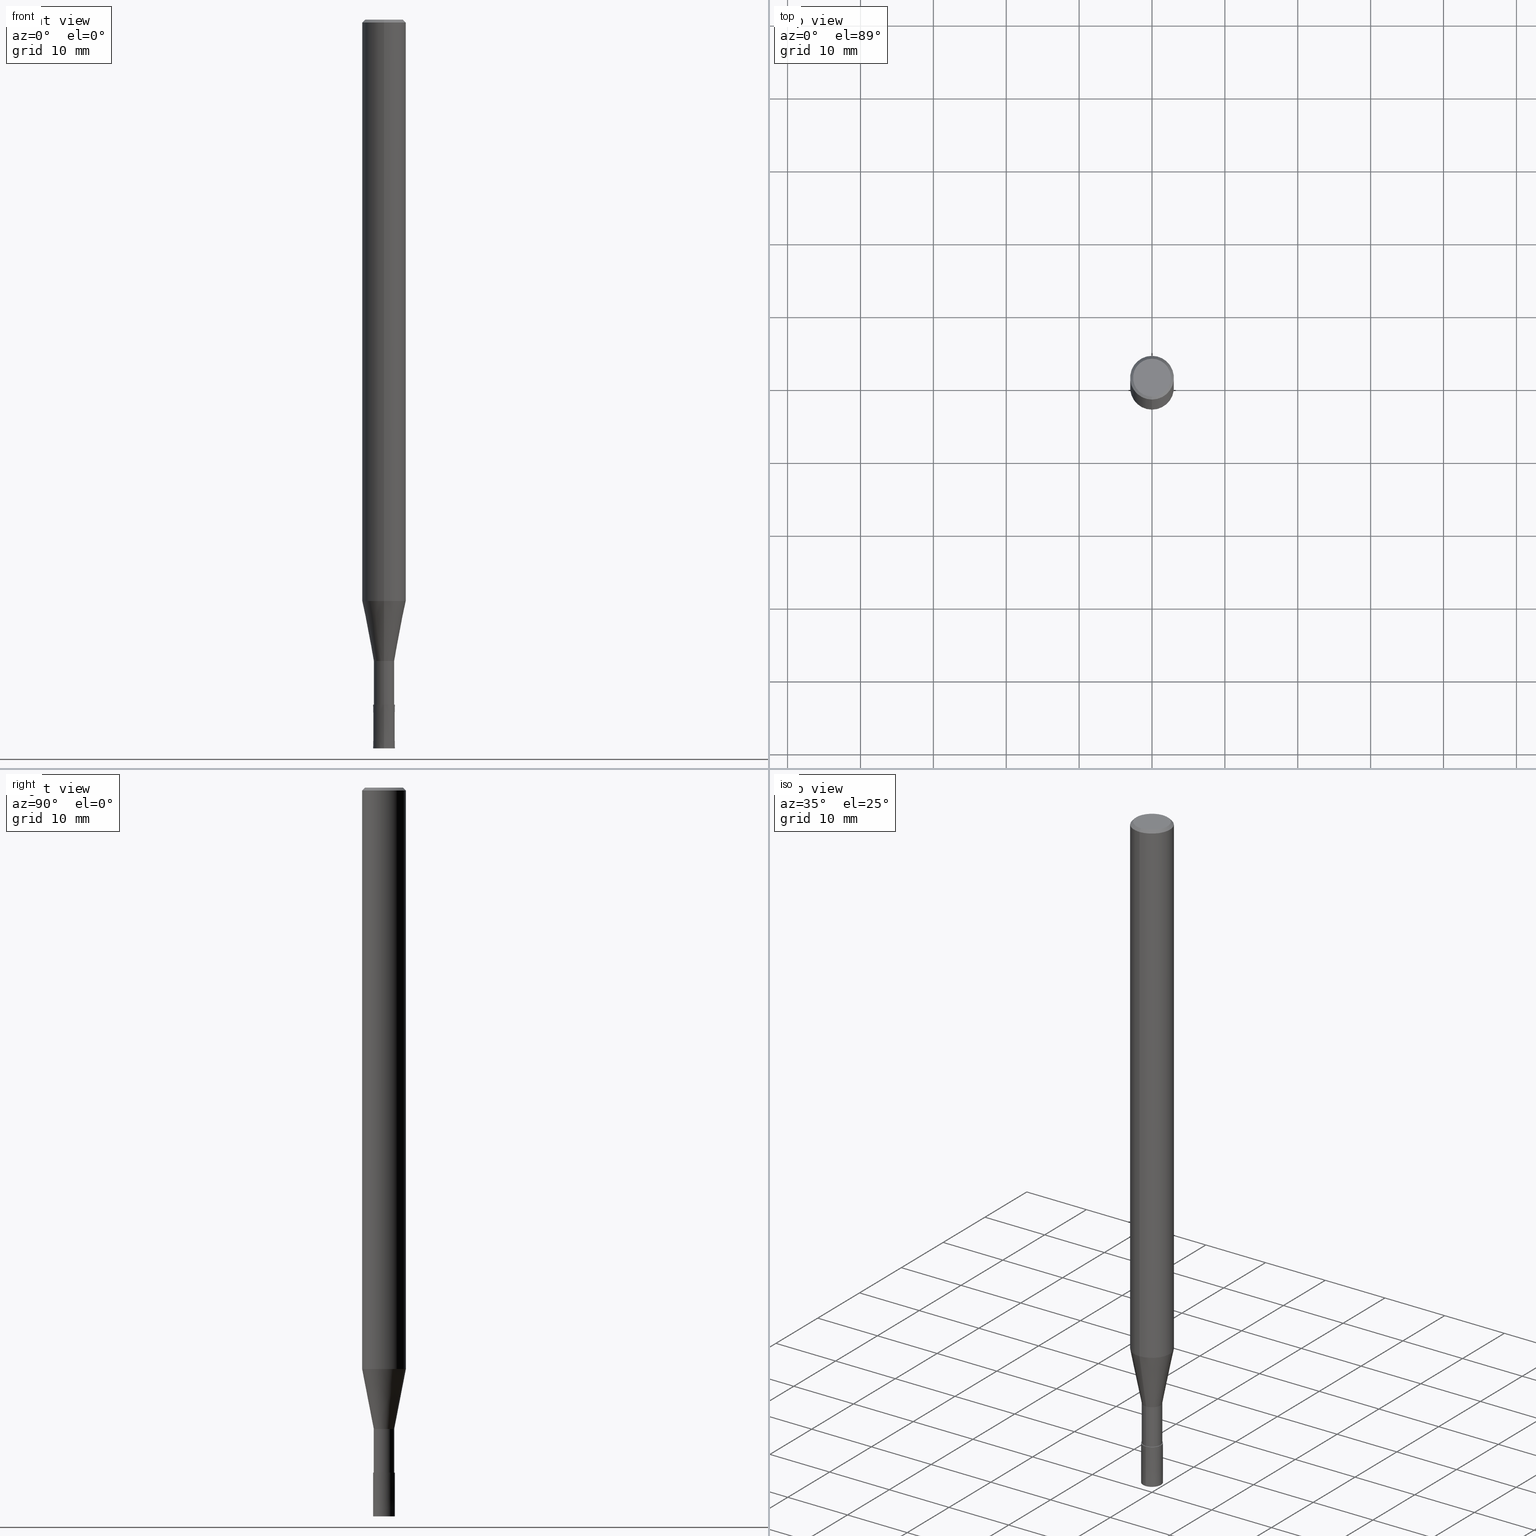
[diagram: canonical four-view strip — front | top / right | iso, engineering-drawing reading convention]
A machine part, canonical four-view strip (front | top / right | iso — engineering-drawing reading convention). The complete STEP part file that produces these views, byte-faithful:
ISO-10303-21;
HEADER;
FILE_DESCRIPTION(('no description'),'unknown implementation level');
FILE_NAME('CPRL2030-12-Huellk.stp','  ',('CIMSOURCE GmbH'),('CADClick - KiM GmbH - www.kimweb.de'),'unknown preprocess','ACIS','unknown authorization');
FILE_SCHEMA(('automotive_design'));
ENDSEC;
DATA;
#1=MECHANICAL_DESIGN_GEOMETRIC_PRESENTATION_REPRESENTATION(' ',(#14,#15,#16,#17,#18,#19,#20,#21,#22,#23,#24,#25,#26,#27,#28,#29,#30,#31,#32,#33,#34,#35,#36,#37,#38,#39,#40,#41,#42,#43,#44,#45,#46,#47,#48,#49,#50,#51,#52,#53,#54,#55,#56,#57,#58,#59,#60,#61,#62,#63,#64,#65,#66,#67,#68,#69,#70,#71,#72),#10);
#2=PRODUCT_DEFINITION_CONTEXT('',#73,'design');
#3=APPLICATION_PROTOCOL_DEFINITION('INTERNATIONAL STANDARD','automotive_design',1994,#73);
#4=PRODUCT_CATEGORY_RELATIONSHIP('NONE','NONE',#74,#75);
#5=SHAPE_DEFINITION_REPRESENTATION(#76,#77);
#6=PRODUCT_DEFINITION_CONTEXT('',#78,'design');
#7=APPLICATION_PROTOCOL_DEFINITION('INTERNATIONAL STANDARD','automotive_design',1994,#78);
#8=PRODUCT_CATEGORY_RELATIONSHIP('NONE','NONE',#79,#80);
#9=SHAPE_DEFINITION_REPRESENTATION(#81,#82);
#10= (GEOMETRIC_REPRESENTATION_CONTEXT(3)GLOBAL_UNCERTAINTY_ASSIGNED_CONTEXT((#85))GLOBAL_UNIT_ASSIGNED_CONTEXT((#87,#88,#89))REPRESENTATION_CONTEXT('NONE','WORKSPACE'));
#14=STYLED_ITEM('',(#91),#92);
#15=STYLED_ITEM('',(#93),#94);
#16=STYLED_ITEM('',(#95),#96);
#17=STYLED_ITEM('',(#97),#98);
#18=STYLED_ITEM('',(#99),#100);
#19=STYLED_ITEM('',(#101),#102);
#20=STYLED_ITEM('',(#103),#104);
#21=STYLED_ITEM('',(#105),#106);
#22=STYLED_ITEM('',(#107),#108);
#23=STYLED_ITEM('',(#109),#110);
#24=STYLED_ITEM('',(#111),#112);
#25=STYLED_ITEM('',(#113),#114);
#26=STYLED_ITEM('',(#115),#116);
#27=STYLED_ITEM('',(#117),#118);
#28=STYLED_ITEM('',(#119),#120);
#29=STYLED_ITEM('',(#121),#122);
#30=STYLED_ITEM('',(#123),#124);
#31=STYLED_ITEM('',(#125),#126);
#32=STYLED_ITEM('',(#127),#128);
#33=STYLED_ITEM('',(#129),#130);
#34=STYLED_ITEM('',(#131),#132);
#35=STYLED_ITEM('',(#133),#134);
#36=STYLED_ITEM('',(#135),#136);
#37=STYLED_ITEM('',(#137),#138);
#38=STYLED_ITEM('',(#139),#140);
#39=STYLED_ITEM('',(#141),#142);
#40=STYLED_ITEM('',(#143),#144);
#41=STYLED_ITEM('',(#145),#146);
#42=STYLED_ITEM('',(#147),#148);
#43=STYLED_ITEM('',(#149),#150);
#44=STYLED_ITEM('',(#151),#152);
#45=STYLED_ITEM('',(#153),#154);
#46=STYLED_ITEM('',(#155),#156);
#47=STYLED_ITEM('',(#157),#158);
#48=STYLED_ITEM('',(#159),#160);
#49=STYLED_ITEM('',(#161),#162);
#50=STYLED_ITEM('',(#163),#164);
#51=STYLED_ITEM('',(#165),#166);
#52=STYLED_ITEM('',(#167),#168);
#53=STYLED_ITEM('',(#169),#170);
#54=STYLED_ITEM('',(#171),#172);
#55=STYLED_ITEM('',(#173),#174);
#56=STYLED_ITEM('',(#175),#176);
#57=STYLED_ITEM('',(#177),#178);
#58=STYLED_ITEM('',(#179),#180);
#59=STYLED_ITEM('',(#181),#182);
#60=STYLED_ITEM('',(#183),#184);
#61=STYLED_ITEM('',(#185),#186);
#62=STYLED_ITEM('',(#187),#188);
#63=STYLED_ITEM('',(#189),#190);
#64=STYLED_ITEM('',(#191),#192);
#65=STYLED_ITEM('',(#193),#194);
#66=STYLED_ITEM('',(#195),#196);
#67=STYLED_ITEM('',(#197),#198);
#68=STYLED_ITEM('',(#199),#200);
#69=STYLED_ITEM('',(#201),#202);
#70=STYLED_ITEM('',(#203),#204);
#71=STYLED_ITEM('',(#205),#206);
#72=STYLED_ITEM('',(#207),#208);
#73=APPLICATION_CONTEXT(' ');
#74=PRODUCT_CATEGORY('part','NONE');
#75=PRODUCT_RELATED_PRODUCT_CATEGORY('detail',' ',(#209));
#76=PRODUCT_DEFINITION_SHAPE('NONE','NONE',#210);
#77=ADVANCED_BREP_SHAPE_REPRESENTATION('1',(#186,#211),#10);
#78=APPLICATION_CONTEXT(' ');
#79=PRODUCT_CATEGORY('part','NONE');
#80=PRODUCT_RELATED_PRODUCT_CATEGORY('detail',' ',(#212));
#81=PRODUCT_DEFINITION_SHAPE('NONE','NONE',#213);
#82=ADVANCED_BREP_SHAPE_REPRESENTATION('2',(#154,#214),#10);
#85=UNCERTAINTY_MEASURE_WITH_UNIT(LENGTH_MEASURE(1.0E-006),#87,'','');
#87= (CONVERSION_BASED_UNIT('MILLIMETRE',#217)LENGTH_UNIT()NAMED_UNIT(#220));
#88= (NAMED_UNIT(#222)PLANE_ANGLE_UNIT()SI_UNIT($,.RADIAN.));
#89= (NAMED_UNIT(#222)SOLID_ANGLE_UNIT()SI_UNIT($,.STERADIAN.));
#91=PRESENTATION_STYLE_ASSIGNMENT((#228));
#92=EDGE_CURVE('',#114,#132,#229,.T.);
#93=PRESENTATION_STYLE_ASSIGNMENT((#230));
#94=ADVANCED_FACE('',(#231),#232,.T.);
#95=PRESENTATION_STYLE_ASSIGNMENT((#233));
#96=ADVANCED_FACE('',(#234),#235,.T.);
#97=PRESENTATION_STYLE_ASSIGNMENT((#236));
#98=EDGE_CURVE('',#196,#158,#237,.T.);
#99=PRESENTATION_STYLE_ASSIGNMENT((#238));
#100=VERTEX_POINT('',#239);
#101=PRESENTATION_STYLE_ASSIGNMENT((#240));
#102=EDGE_CURVE('',#192,#148,#241,.T.);
#103=PRESENTATION_STYLE_ASSIGNMENT((#242));
#104=EDGE_CURVE('',#196,#168,#243,.T.);
#105=PRESENTATION_STYLE_ASSIGNMENT((#244));
#106=EDGE_CURVE('',#158,#196,#245,.T.);
#107=PRESENTATION_STYLE_ASSIGNMENT((#246));
#108=ADVANCED_FACE('',(#247),#248,.T.);
#109=PRESENTATION_STYLE_ASSIGNMENT((#249));
#110=EDGE_CURVE('',#134,#172,#250,.T.);
#111=PRESENTATION_STYLE_ASSIGNMENT((#251));
#112=ADVANCED_FACE('',(#252),#253,.T.);
#113=PRESENTATION_STYLE_ASSIGNMENT((#254));
#114=VERTEX_POINT('',#255);
#115=PRESENTATION_STYLE_ASSIGNMENT((#256));
#116=VERTEX_POINT('',#257);
#117=PRESENTATION_STYLE_ASSIGNMENT((#258));
#118=EDGE_CURVE('',#148,#192,#259,.T.);
#119=PRESENTATION_STYLE_ASSIGNMENT((#260));
#120=ADVANCED_FACE('',(#261),#262,.T.);
#121=PRESENTATION_STYLE_ASSIGNMENT((#263));
#122=EDGE_CURVE('',#132,#188,#264,.T.);
#123=PRESENTATION_STYLE_ASSIGNMENT((#265));
#124=EDGE_CURVE('',#142,#168,#266,.T.);
#125=PRESENTATION_STYLE_ASSIGNMENT((#267));
#126=EDGE_CURVE('',#100,#116,#268,.T.);
#127=PRESENTATION_STYLE_ASSIGNMENT((#269));
#128=ADVANCED_FACE('',(#270),#271,.T.);
#129=PRESENTATION_STYLE_ASSIGNMENT((#272));
#130=EDGE_CURVE('',#142,#158,#273,.T.);
#131=PRESENTATION_STYLE_ASSIGNMENT((#274));
#132=VERTEX_POINT('',#275);
#133=PRESENTATION_STYLE_ASSIGNMENT((#276));
#134=VERTEX_POINT('',#277);
#135=PRESENTATION_STYLE_ASSIGNMENT((#278));
#136=VERTEX_POINT('',#279);
#137=PRESENTATION_STYLE_ASSIGNMENT((#280));
#138=EDGE_CURVE('',#172,#148,#281,.T.);
#139=PRESENTATION_STYLE_ASSIGNMENT((#282));
#140=EDGE_CURVE('',#146,#172,#283,.T.);
#141=PRESENTATION_STYLE_ASSIGNMENT((#284));
#142=VERTEX_POINT('',#285);
#143=PRESENTATION_STYLE_ASSIGNMENT((#286));
#144=ADVANCED_FACE('',(#287),#288,.T.);
#145=PRESENTATION_STYLE_ASSIGNMENT((#289));
#146=VERTEX_POINT('',#290);
#147=PRESENTATION_STYLE_ASSIGNMENT((#291));
#148=VERTEX_POINT('',#292);
#149=PRESENTATION_STYLE_ASSIGNMENT((#293));
#150=ADVANCED_FACE('',(#294),#295,.T.);
#151=PRESENTATION_STYLE_ASSIGNMENT((#296));
#152=EDGE_CURVE('',#132,#100,#297,.T.);
#153=PRESENTATION_STYLE_ASSIGNMENT((#298));
#154=MANIFOLD_SOLID_BREP('2',#299);
#155=PRESENTATION_STYLE_ASSIGNMENT((#300));
#156=EDGE_CURVE('',#188,#176,#301,.T.);
#157=PRESENTATION_STYLE_ASSIGNMENT((#302));
#158=VERTEX_POINT('',#303);
#159=PRESENTATION_STYLE_ASSIGNMENT((#304));
#160=EDGE_CURVE('',#116,#100,#305,.T.);
#161=PRESENTATION_STYLE_ASSIGNMENT((#306));
#162=ADVANCED_FACE('',(#307),#308,.T.);
#163=PRESENTATION_STYLE_ASSIGNMENT((#309));
#164=ADVANCED_FACE('',(#310),#311,.T.);
#165=PRESENTATION_STYLE_ASSIGNMENT((#312));
#166=ADVANCED_FACE('',(#313),#314,.T.);
#167=PRESENTATION_STYLE_ASSIGNMENT((#315));
#168=VERTEX_POINT('',#316);
#169=PRESENTATION_STYLE_ASSIGNMENT((#317));
#170=ADVANCED_FACE('',(#318),#319,.T.);
#171=PRESENTATION_STYLE_ASSIGNMENT((#320));
#172=VERTEX_POINT('',#321);
#173=PRESENTATION_STYLE_ASSIGNMENT((#322));
#174=EDGE_CURVE('',#134,#136,#323,.T.);
#175=PRESENTATION_STYLE_ASSIGNMENT((#324));
#176=VERTEX_POINT('',#325);
#177=PRESENTATION_STYLE_ASSIGNMENT((#326));
#178=ADVANCED_FACE('',(#327),#328,.T.);
#179=PRESENTATION_STYLE_ASSIGNMENT((#329));
#180=EDGE_CURVE('',#188,#132,#330,.T.);
#181=PRESENTATION_STYLE_ASSIGNMENT((#331));
#182=EDGE_CURVE('',#114,#176,#332,.T.);
#183=PRESENTATION_STYLE_ASSIGNMENT((#333));
#184=EDGE_CURVE('',#176,#114,#334,.T.);
#185=PRESENTATION_STYLE_ASSIGNMENT((#335));
#186=MANIFOLD_SOLID_BREP('1',#336);
#187=PRESENTATION_STYLE_ASSIGNMENT((#337));
#188=VERTEX_POINT('',#338);
#189=PRESENTATION_STYLE_ASSIGNMENT((#339));
#190=EDGE_CURVE('',#146,#136,#340,.T.);
#191=PRESENTATION_STYLE_ASSIGNMENT((#341));
#192=VERTEX_POINT('',#342);
#193=PRESENTATION_STYLE_ASSIGNMENT((#343));
#194=ADVANCED_FACE('',(#344),#345,.T.);
#195=PRESENTATION_STYLE_ASSIGNMENT((#346));
#196=VERTEX_POINT('',#347);
#197=PRESENTATION_STYLE_ASSIGNMENT((#348));
#198=EDGE_CURVE('',#168,#142,#349,.T.);
#199=PRESENTATION_STYLE_ASSIGNMENT((#350));
#200=ADVANCED_FACE('',(#351,#352),#353,.T.);
#201=PRESENTATION_STYLE_ASSIGNMENT((#354));
#202=EDGE_CURVE('',#136,#146,#355,.T.);
#203=PRESENTATION_STYLE_ASSIGNMENT((#356));
#204=EDGE_CURVE('',#116,#188,#357,.T.);
#205=PRESENTATION_STYLE_ASSIGNMENT((#358));
#206=EDGE_CURVE('',#172,#134,#359,.T.);
#207=PRESENTATION_STYLE_ASSIGNMENT((#360));
#208=EDGE_CURVE('',#192,#134,#361,.T.);
#209=PRODUCT('1','1','PART-1-DESC',(#362));
#210=PRODUCT_DEFINITION('NONE','NONE',#363,#2);
#211=AXIS2_PLACEMENT_3D('',#364,#365,#366);
#212=PRODUCT('2','2','PART-2-DESC',(#367));
#213=PRODUCT_DEFINITION('NONE','NONE',#368,#6);
#214=AXIS2_PLACEMENT_3D('',#369,#370,#371);
#217=LENGTH_MEASURE_WITH_UNIT(LENGTH_MEASURE(1.0),#372);
#220=DIMENSIONAL_EXPONENTS(1.0,0.0,0.0,0.0,0.0,0.0,0.0);
#222=DIMENSIONAL_EXPONENTS(0.0,0.0,0.0,0.0,0.0,0.0,0.0);
#228=CURVE_STYLE('',#373,POSITIVE_LENGTH_MEASURE(1.0E-006),#374);
#229=LINE('',#375,#376);
#230=SURFACE_STYLE_USAGE(.BOTH.,#377);
#231=FACE_OUTER_BOUND('',#378,.T.);
#232=PLANE('',#379);
#233=SURFACE_STYLE_USAGE(.BOTH.,#380);
#234=FACE_OUTER_BOUND('',#381,.T.);
#235=CONICAL_SURFACE('',#382,2.19995,0.191992735564386);
#236=CURVE_STYLE('',#383,POSITIVE_LENGTH_MEASURE(1.0E-006),#384);
#237=CIRCLE('',#385,1.4999);
#238=POINT_STYLE(' ',#386,POSITIVE_LENGTH_MEASURE(1.0E-006),#387);
#239=CARTESIAN_POINT('',(0.0,1.39995,-94.0));
#240=CURVE_STYLE('',#388,POSITIVE_LENGTH_MEASURE(1.0E-006),#389);
#241=CIRCLE('',#390,3.0);
#242=CURVE_STYLE('',#391,POSITIVE_LENGTH_MEASURE(1.0E-006),#392);
#243=LINE('',#393,#394);
#244=CURVE_STYLE('',#395,POSITIVE_LENGTH_MEASURE(1.0E-006),#396);
#245=CIRCLE('',#397,1.4999);
#246=SURFACE_STYLE_USAGE(.BOTH.,#398);
#247=FACE_OUTER_BOUND('',#399,.T.);
#248=CYLINDRICAL_SURFACE('',#400,1.39995);
#249=CURVE_STYLE('',#401,POSITIVE_LENGTH_MEASURE(1.0E-006),#402);
#250=CIRCLE('',#403,3.0);
#251=SURFACE_STYLE_USAGE(.BOTH.,#404);
#252=FACE_OUTER_BOUND('',#405,.T.);
#253=CYLINDRICAL_SURFACE('',#406,1.39995);
#254=POINT_STYLE(' ',#407,POSITIVE_LENGTH_MEASURE(1.0E-006),#408);
#255=CARTESIAN_POINT('',(0.0,2.99995,-79.769));
#256=POINT_STYLE(' ',#409,POSITIVE_LENGTH_MEASURE(1.0E-006),#410);
#257=CARTESIAN_POINT('',(1.71438766503364E-016,-1.39995,-94.0));
#258=CURVE_STYLE('',#411,POSITIVE_LENGTH_MEASURE(1.0E-006),#412);
#259=CIRCLE('',#413,3.0);
#260=SURFACE_STYLE_USAGE(.BOTH.,#414);
#261=FACE_OUTER_BOUND('',#415,.T.);
#262=CONICAL_SURFACE('',#416,1.49995,1.66666666651216E-005);
#263=CURVE_STYLE('',#417,POSITIVE_LENGTH_MEASURE(1.0E-006),#418);
#264=CIRCLE('',#419,1.39995);
#265=CURVE_STYLE('',#420,POSITIVE_LENGTH_MEASURE(1.0E-006),#421);
#266=CIRCLE('',#422,1.5);
#267=CURVE_STYLE('',#423,POSITIVE_LENGTH_MEASURE(1.0E-006),#424);
#268=CIRCLE('',#425,1.39995);
#269=SURFACE_STYLE_USAGE(.BOTH.,#426);
#270=FACE_OUTER_BOUND('',#427,.T.);
#271=PLANE('',#428);
#272=CURVE_STYLE('',#429,POSITIVE_LENGTH_MEASURE(1.0E-006),#430);
#273=LINE('',#431,#432);
#274=POINT_STYLE(' ',#433,POSITIVE_LENGTH_MEASURE(1.0E-006),#434);
#275=CARTESIAN_POINT('',(0.0,1.39995,-88.0));
#276=POINT_STYLE(' ',#435,POSITIVE_LENGTH_MEASURE(1.0E-006),#436);
#277=CARTESIAN_POINT('',(3.67381906146713E-016,-3.0,-0.400000000000006));
#278=POINT_STYLE(' ',#437,POSITIVE_LENGTH_MEASURE(1.0E-006),#438);
#279=CARTESIAN_POINT('',(3.18397651993818E-016,-2.6,0.0));
#280=CURVE_STYLE('',#439,POSITIVE_LENGTH_MEASURE(1.0E-006),#440);
#281=LINE('',#441,#442);
#282=CURVE_STYLE('',#443,POSITIVE_LENGTH_MEASURE(1.0E-006),#444);
#283=LINE('',#445,#446);
#284=POINT_STYLE(' ',#447,POSITIVE_LENGTH_MEASURE(1.0E-006),#448);
#285=CARTESIAN_POINT('',(1.83690953073357E-016,-1.5,-100.0));
#286=SURFACE_STYLE_USAGE(.BOTH.,#449);
#287=FACE_OUTER_BOUND('',#450,.T.);
#288=PLANE('',#451);
#289=POINT_STYLE(' ',#452,POSITIVE_LENGTH_MEASURE(1.0E-006),#453);
#290=CARTESIAN_POINT('',(0.0,2.6,0.0));
#291=POINT_STYLE(' ',#454,POSITIVE_LENGTH_MEASURE(1.0E-006),#455);
#292=CARTESIAN_POINT('',(0.0,3.0,-79.769));
#293=SURFACE_STYLE_USAGE(.BOTH.,#456);
#294=FACE_OUTER_BOUND('',#457,.T.);
#295=CYLINDRICAL_SURFACE('',#458,3.0);
#296=CURVE_STYLE('',#459,POSITIVE_LENGTH_MEASURE(1.0E-006),#460);
#297=LINE('',#461,#462);
#298=SURFACE_STYLE_USAGE(.BOTH.,#463);
#299=CLOSED_SHELL('',(#120,#170,#194,#128));
#300=CURVE_STYLE('',#464,POSITIVE_LENGTH_MEASURE(1.0E-006),#465);
#301=LINE('',#466,#467);
#302=POINT_STYLE(' ',#468,POSITIVE_LENGTH_MEASURE(1.0E-006),#469);
#303=CARTESIAN_POINT('',(1.83678707009818E-016,-1.4999,-94.0));
#304=CURVE_STYLE('',#470,POSITIVE_LENGTH_MEASURE(1.0E-006),#471);
#305=CIRCLE('',#472,1.39995);
#306=SURFACE_STYLE_USAGE(.BOTH.,#473);
#307=FACE_OUTER_BOUND('',#474,.T.);
#308=CONICAL_SURFACE('',#475,2.8,0.785398163397441);
#309=SURFACE_STYLE_USAGE(.BOTH.,#476);
#310=FACE_OUTER_BOUND('',#477,.T.);
#311=CONICAL_SURFACE('',#478,2.8,0.785398163397441);
#312=SURFACE_STYLE_USAGE(.BOTH.,#479);
#313=FACE_OUTER_BOUND('',#480,.T.);
#314=CYLINDRICAL_SURFACE('',#481,3.0);
#315=POINT_STYLE(' ',#482,POSITIVE_LENGTH_MEASURE(1.0E-006),#483);
#316=CARTESIAN_POINT('',(0.0,1.5,-100.0));
#317=SURFACE_STYLE_USAGE(.BOTH.,#484);
#318=FACE_OUTER_BOUND('',#485,.T.);
#319=PLANE('',#486);
#320=POINT_STYLE(' ',#487,POSITIVE_LENGTH_MEASURE(1.0E-006),#488);
#321=CARTESIAN_POINT('',(0.0,3.0,-0.400000000000006));
#322=CURVE_STYLE('',#489,POSITIVE_LENGTH_MEASURE(1.0E-006),#490);
#323=LINE('',#491,#492);
#324=POINT_STYLE(' ',#493,POSITIVE_LENGTH_MEASURE(1.0E-006),#494);
#325=CARTESIAN_POINT('',(3.67375783114944E-016,-2.99995,-79.769));
#326=SURFACE_STYLE_USAGE(.BOTH.,#495);
#327=FACE_OUTER_BOUND('',#496,.T.);
#328=CONICAL_SURFACE('',#497,2.19995,0.191992735564386);
#329=CURVE_STYLE('',#498,POSITIVE_LENGTH_MEASURE(1.0E-006),#499);
#330=CIRCLE('',#500,1.39995);
#331=CURVE_STYLE('',#501,POSITIVE_LENGTH_MEASURE(1.0E-006),#502);
#332=CIRCLE('',#503,2.99995);
#333=CURVE_STYLE('',#504,POSITIVE_LENGTH_MEASURE(1.0E-006),#505);
#334=CIRCLE('',#506,2.99995);
#335=SURFACE_STYLE_USAGE(.BOTH.,#507);
#336=CLOSED_SHELL('',(#108,#178,#166,#164,#200,#144,#162,#150,#96,#112,#94));
#337=POINT_STYLE(' ',#508,POSITIVE_LENGTH_MEASURE(1.0E-006),#509);
#338=CARTESIAN_POINT('',(1.71438766503364E-016,-1.39995,-88.0));
#339=CURVE_STYLE('',#510,POSITIVE_LENGTH_MEASURE(1.0E-006),#511);
#340=CIRCLE('',#512,2.6);
#341=POINT_STYLE(' ',#513,POSITIVE_LENGTH_MEASURE(1.0E-006),#514);
#342=CARTESIAN_POINT('',(3.67381906146713E-016,-3.0,-79.769));
#343=SURFACE_STYLE_USAGE(.BOTH.,#515);
#344=FACE_OUTER_BOUND('',#516,.T.);
#345=CONICAL_SURFACE('',#517,1.49995,1.66666666651216E-005);
#346=POINT_STYLE(' ',#518,POSITIVE_LENGTH_MEASURE(1.0E-006),#519);
#347=CARTESIAN_POINT('',(0.0,1.4999,-94.0));
#348=CURVE_STYLE('',#520,POSITIVE_LENGTH_MEASURE(1.0E-006),#521);
#349=CIRCLE('',#522,1.5);
#350=SURFACE_STYLE_USAGE(.BOTH.,#523);
#351=FACE_OUTER_BOUND('',#524,.T.);
#352=FACE_BOUND('',#525,.T.);
#353=PLANE('',#526);
#354=CURVE_STYLE('',#527,POSITIVE_LENGTH_MEASURE(1.0E-006),#528);
#355=CIRCLE('',#529,2.6);
#356=CURVE_STYLE('',#530,POSITIVE_LENGTH_MEASURE(1.0E-006),#531);
#357=LINE('',#532,#533);
#358=CURVE_STYLE('',#534,POSITIVE_LENGTH_MEASURE(1.0E-006),#535);
#359=CIRCLE('',#536,3.0);
#360=CURVE_STYLE('',#537,POSITIVE_LENGTH_MEASURE(1.0E-006),#538);
#361=LINE('',#539,#540);
#362=PRODUCT_CONTEXT('',#73,'mechanical');
#363=PRODUCT_DEFINITION_FORMATION_WITH_SPECIFIED_SOURCE(' ','NONE',#209,.NOT_KNOWN.);
#364=CARTESIAN_POINT('',(0.0,0.0,0.0));
#365=DIRECTION('',(0.0,0.0,1.0));
#366=DIRECTION('',(1.0,0.0,0.0));
#367=PRODUCT_CONTEXT('',#78,'mechanical');
#368=PRODUCT_DEFINITION_FORMATION_WITH_SPECIFIED_SOURCE(' ','NONE',#212,.NOT_KNOWN.);
#369=CARTESIAN_POINT('',(0.0,0.0,0.0));
#370=DIRECTION('',(0.0,0.0,1.0));
#371=DIRECTION('',(1.0,0.0,0.0));
#372= (NAMED_UNIT(#220)LENGTH_UNIT()SI_UNIT(.MILLI.,.METRE.));
#373=DRAUGHTING_PRE_DEFINED_CURVE_FONT('continuous');
#374=COLOUR_RGB('',0.498039215803146,0.498039215803146,0.498039215803146);
#375=CARTESIAN_POINT('',(-2.69407274809154E-016,2.19995,-83.8845));
#376=VECTOR('',#542,1.0);
#377=SURFACE_SIDE_STYLE('',(#543));
#378=EDGE_LOOP('',(#544,#545));
#379=AXIS2_PLACEMENT_3D('',#546,#547,#548);
#380=SURFACE_SIDE_STYLE('',(#549));
#381=EDGE_LOOP('',(#550,#551,#552,#553));
#382=AXIS2_PLACEMENT_3D('',#554,#555,#556);
#383=DRAUGHTING_PRE_DEFINED_CURVE_FONT('continuous');
#384=COLOUR_RGB('',0.800000011920929,0.800000011920929,0.800000011920929);
#385=AXIS2_PLACEMENT_3D('',#557,#558,#559);
#386=PRE_DEFINED_MARKER('');
#387=COLOUR_RGB('',0.498039215803146,0.498039215803146,0.498039215803146);
#388=DRAUGHTING_PRE_DEFINED_CURVE_FONT('continuous');
#389=COLOUR_RGB('',0.498039215803146,0.498039215803146,0.498039215803146);
#390=AXIS2_PLACEMENT_3D('',#560,#561,#562);
#391=DRAUGHTING_PRE_DEFINED_CURVE_FONT('continuous');
#392=COLOUR_RGB('',0.800000011920929,0.800000011920929,0.800000011920929);
#393=CARTESIAN_POINT('',(-1.83684830041587E-016,1.49995,-97.0));
#394=VECTOR('',#563,1.0);
#395=DRAUGHTING_PRE_DEFINED_CURVE_FONT('continuous');
#396=COLOUR_RGB('',0.800000011920929,0.800000011920929,0.800000011920929);
#397=AXIS2_PLACEMENT_3D('',#564,#565,#566);
#398=SURFACE_SIDE_STYLE('',(#567));
#399=EDGE_LOOP('',(#568,#569,#570,#571));
#400=AXIS2_PLACEMENT_3D('',#572,#573,#574);
#401=DRAUGHTING_PRE_DEFINED_CURVE_FONT('continuous');
#402=COLOUR_RGB('',0.498039215803146,0.498039215803146,0.498039215803146);
#403=AXIS2_PLACEMENT_3D('',#575,#576,#577);
#404=SURFACE_SIDE_STYLE('',(#578));
#405=EDGE_LOOP('',(#579,#580,#581,#582));
#406=AXIS2_PLACEMENT_3D('',#583,#584,#585);
#407=PRE_DEFINED_MARKER('');
#408=COLOUR_RGB('',0.498039215803146,0.498039215803146,0.498039215803146);
#409=PRE_DEFINED_MARKER('');
#410=COLOUR_RGB('',0.498039215803146,0.498039215803146,0.498039215803146);
#411=DRAUGHTING_PRE_DEFINED_CURVE_FONT('continuous');
#412=COLOUR_RGB('',0.498039215803146,0.498039215803146,0.498039215803146);
#413=AXIS2_PLACEMENT_3D('',#586,#587,#588);
#414=SURFACE_SIDE_STYLE('',(#589));
#415=EDGE_LOOP('',(#590,#591,#592,#593));
#416=AXIS2_PLACEMENT_3D('',#594,#595,#596);
#417=DRAUGHTING_PRE_DEFINED_CURVE_FONT('continuous');
#418=COLOUR_RGB('',0.498039215803146,0.498039215803146,0.498039215803146);
#419=AXIS2_PLACEMENT_3D('',#597,#598,#599);
#420=DRAUGHTING_PRE_DEFINED_CURVE_FONT('continuous');
#421=COLOUR_RGB('',0.800000011920929,0.800000011920929,0.800000011920929);
#422=AXIS2_PLACEMENT_3D('',#600,#601,#602);
#423=DRAUGHTING_PRE_DEFINED_CURVE_FONT('continuous');
#424=COLOUR_RGB('',0.498039215803146,0.498039215803146,0.498039215803146);
#425=AXIS2_PLACEMENT_3D('',#603,#604,#605);
#426=SURFACE_SIDE_STYLE('',(#606));
#427=EDGE_LOOP('',(#607,#608));
#428=AXIS2_PLACEMENT_3D('',#609,#610,#611);
#429=DRAUGHTING_PRE_DEFINED_CURVE_FONT('continuous');
#430=COLOUR_RGB('',0.800000011920929,0.800000011920929,0.800000011920929);
#431=CARTESIAN_POINT('',(1.83684830041587E-016,-1.49995,-97.0));
#432=VECTOR('',#612,1.0);
#433=PRE_DEFINED_MARKER('');
#434=COLOUR_RGB('',0.498039215803146,0.498039215803146,0.498039215803146);
#435=PRE_DEFINED_MARKER('');
#436=COLOUR_RGB('',0.498039215803146,0.498039215803146,0.498039215803146);
#437=PRE_DEFINED_MARKER('');
#438=COLOUR_RGB('',0.498039215803146,0.498039215803146,0.498039215803146);
#439=DRAUGHTING_PRE_DEFINED_CURVE_FONT('continuous');
#440=COLOUR_RGB('',0.498039215803146,0.498039215803146,0.498039215803146);
#441=CARTESIAN_POINT('',(-3.67381906146713E-016,3.0,-40.0845));
#442=VECTOR('',#613,1.0);
#443=DRAUGHTING_PRE_DEFINED_CURVE_FONT('continuous');
#444=COLOUR_RGB('',0.498039215803146,0.498039215803146,0.498039215803146);
#445=CARTESIAN_POINT('',(-3.42889779070266E-016,2.8,-0.200000000000003));
#446=VECTOR('',#614,1.0);
#447=PRE_DEFINED_MARKER('');
#448=COLOUR_RGB('',0.800000011920929,0.800000011920929,0.800000011920929);
#449=SURFACE_SIDE_STYLE('',(#615));
#450=EDGE_LOOP('',(#616,#617));
#451=AXIS2_PLACEMENT_3D('',#618,#619,#620);
#452=PRE_DEFINED_MARKER('');
#453=COLOUR_RGB('',0.498039215803146,0.498039215803146,0.498039215803146);
#454=PRE_DEFINED_MARKER('');
#455=COLOUR_RGB('',0.498039215803146,0.498039215803146,0.498039215803146);
#456=SURFACE_SIDE_STYLE('',(#621));
#457=EDGE_LOOP('',(#622,#623,#624,#625));
#458=AXIS2_PLACEMENT_3D('',#626,#627,#628);
#459=DRAUGHTING_PRE_DEFINED_CURVE_FONT('continuous');
#460=COLOUR_RGB('',0.498039215803146,0.498039215803146,0.498039215803146);
#461=CARTESIAN_POINT('',(-1.71438766503364E-016,1.39995,-91.0));
#462=VECTOR('',#629,1.0);
#463=SURFACE_SIDE_STYLE('',(#630));
#464=DRAUGHTING_PRE_DEFINED_CURVE_FONT('continuous');
#465=COLOUR_RGB('',0.498039215803146,0.498039215803146,0.498039215803146);
#466=CARTESIAN_POINT('',(2.69407274809154E-016,-2.19995,-83.8845));
#467=VECTOR('',#631,1.0);
#468=PRE_DEFINED_MARKER('');
#469=COLOUR_RGB('',0.800000011920929,0.800000011920929,0.800000011920929);
#470=DRAUGHTING_PRE_DEFINED_CURVE_FONT('continuous');
#471=COLOUR_RGB('',0.498039215803146,0.498039215803146,0.498039215803146);
#472=AXIS2_PLACEMENT_3D('',#632,#633,#634);
#473=SURFACE_SIDE_STYLE('',(#635));
#474=EDGE_LOOP('',(#636,#637,#638,#639));
#475=AXIS2_PLACEMENT_3D('',#640,#641,#642);
#476=SURFACE_SIDE_STYLE('',(#643));
#477=EDGE_LOOP('',(#644,#645,#646,#647));
#478=AXIS2_PLACEMENT_3D('',#648,#649,#650);
#479=SURFACE_SIDE_STYLE('',(#651));
#480=EDGE_LOOP('',(#652,#653,#654,#655));
#481=AXIS2_PLACEMENT_3D('',#656,#657,#658);
#482=PRE_DEFINED_MARKER('');
#483=COLOUR_RGB('',0.800000011920929,0.800000011920929,0.800000011920929);
#484=SURFACE_SIDE_STYLE('',(#659));
#485=EDGE_LOOP('',(#660,#661));
#486=AXIS2_PLACEMENT_3D('',#662,#663,#664);
#487=PRE_DEFINED_MARKER('');
#488=COLOUR_RGB('',0.498039215803146,0.498039215803146,0.498039215803146);
#489=DRAUGHTING_PRE_DEFINED_CURVE_FONT('continuous');
#490=COLOUR_RGB('',0.498039215803146,0.498039215803146,0.498039215803146);
#491=CARTESIAN_POINT('',(3.42889779070266E-016,-2.8,-0.200000000000003));
#492=VECTOR('',#665,1.0);
#493=PRE_DEFINED_MARKER('');
#494=COLOUR_RGB('',0.498039215803146,0.498039215803146,0.498039215803146);
#495=SURFACE_SIDE_STYLE('',(#666));
#496=EDGE_LOOP('',(#667,#668,#669,#670));
#497=AXIS2_PLACEMENT_3D('',#671,#672,#673);
#498=DRAUGHTING_PRE_DEFINED_CURVE_FONT('continuous');
#499=COLOUR_RGB('',0.498039215803146,0.498039215803146,0.498039215803146);
#500=AXIS2_PLACEMENT_3D('',#674,#675,#676);
#501=DRAUGHTING_PRE_DEFINED_CURVE_FONT('continuous');
#502=COLOUR_RGB('',0.498039215803146,0.498039215803146,0.498039215803146);
#503=AXIS2_PLACEMENT_3D('',#677,#678,#679);
#504=DRAUGHTING_PRE_DEFINED_CURVE_FONT('continuous');
#505=COLOUR_RGB('',0.498039215803146,0.498039215803146,0.498039215803146);
#506=AXIS2_PLACEMENT_3D('',#680,#681,#682);
#507=SURFACE_SIDE_STYLE('',(#683));
#508=PRE_DEFINED_MARKER('');
#509=COLOUR_RGB('',0.498039215803146,0.498039215803146,0.498039215803146);
#510=DRAUGHTING_PRE_DEFINED_CURVE_FONT('continuous');
#511=COLOUR_RGB('',0.498039215803146,0.498039215803146,0.498039215803146);
#512=AXIS2_PLACEMENT_3D('',#684,#685,#686);
#513=PRE_DEFINED_MARKER('');
#514=COLOUR_RGB('',0.498039215803146,0.498039215803146,0.498039215803146);
#515=SURFACE_SIDE_STYLE('',(#687));
#516=EDGE_LOOP('',(#688,#689,#690,#691));
#517=AXIS2_PLACEMENT_3D('',#692,#693,#694);
#518=PRE_DEFINED_MARKER('');
#519=COLOUR_RGB('',0.800000011920929,0.800000011920929,0.800000011920929);
#520=DRAUGHTING_PRE_DEFINED_CURVE_FONT('continuous');
#521=COLOUR_RGB('',0.800000011920929,0.800000011920929,0.800000011920929);
#522=AXIS2_PLACEMENT_3D('',#695,#696,#697);
#523=SURFACE_SIDE_STYLE('',(#698));
#524=EDGE_LOOP('',(#699,#700));
#525=EDGE_LOOP('',(#701,#702));
#526=AXIS2_PLACEMENT_3D('',#703,#704,#705);
#527=DRAUGHTING_PRE_DEFINED_CURVE_FONT('continuous');
#528=COLOUR_RGB('',0.498039215803146,0.498039215803146,0.498039215803146);
#529=AXIS2_PLACEMENT_3D('',#706,#707,#708);
#530=DRAUGHTING_PRE_DEFINED_CURVE_FONT('continuous');
#531=COLOUR_RGB('',0.498039215803146,0.498039215803146,0.498039215803146);
#532=CARTESIAN_POINT('',(1.71438766503364E-016,-1.39995,-91.0));
#533=VECTOR('',#709,1.0);
#534=DRAUGHTING_PRE_DEFINED_CURVE_FONT('continuous');
#535=COLOUR_RGB('',0.498039215803146,0.498039215803146,0.498039215803146);
#536=AXIS2_PLACEMENT_3D('',#710,#711,#712);
#537=DRAUGHTING_PRE_DEFINED_CURVE_FONT('continuous');
#538=COLOUR_RGB('',0.498039215803146,0.498039215803146,0.498039215803146);
#539=CARTESIAN_POINT('',(3.67381906146713E-016,-3.0,-40.0845));
#540=VECTOR('',#713,1.0);
#542=DIRECTION('',(2.33673743245985E-017,-0.190815393466331,-0.981625939763355));
#543=SURFACE_STYLE_FILL_AREA(#714);
#544=ORIENTED_EDGE('',*,*,#126,.T.);
#545=ORIENTED_EDGE('',*,*,#160,.T.);
#546=CARTESIAN_POINT('',(0.0,0.699975,-94.0));
#547=DIRECTION('',(0.0,0.0,-1.0));
#548=DIRECTION('',(0.0,1.0,0.0));
#549=SURFACE_STYLE_FILL_AREA(#715);
#550=ORIENTED_EDGE('',*,*,#92,.T.);
#551=ORIENTED_EDGE('',*,*,#180,.F.);
#552=ORIENTED_EDGE('',*,*,#156,.T.);
#553=ORIENTED_EDGE('',*,*,#184,.T.);
#554=CARTESIAN_POINT('',(0.0,0.0,-83.8845));
#555=DIRECTION('',(-0.0,-0.0,1.0));
#556=DIRECTION('',(0.0,1.0,0.0));
#557=CARTESIAN_POINT('',(0.0,0.0,-94.0));
#558=DIRECTION('',(0.0,0.0,-1.0));
#559=DIRECTION('',(0.0,1.0,0.0));
#560=CARTESIAN_POINT('',(0.0,0.0,-79.769));
#561=DIRECTION('',(0.0,0.0,-1.0));
#562=DIRECTION('',(0.0,1.0,0.0));
#563=DIRECTION('',(-2.04101058942026E-021,1.666666666435E-005,-0.999999999861111));
#564=CARTESIAN_POINT('',(0.0,0.0,-94.0));
#565=DIRECTION('',(0.0,0.0,-1.0));
#566=DIRECTION('',(0.0,1.0,0.0));
#567=SURFACE_STYLE_FILL_AREA(#716);
#568=ORIENTED_EDGE('',*,*,#152,.F.);
#569=ORIENTED_EDGE('',*,*,#122,.T.);
#570=ORIENTED_EDGE('',*,*,#204,.F.);
#571=ORIENTED_EDGE('',*,*,#126,.F.);
#572=CARTESIAN_POINT('',(0.0,0.0,-91.0));
#573=DIRECTION('',(-0.0,-0.0,1.0));
#574=DIRECTION('',(0.0,1.0,0.0));
#575=CARTESIAN_POINT('',(0.0,0.0,-0.400000000000006));
#576=DIRECTION('',(0.0,0.0,-1.0));
#577=DIRECTION('',(0.0,1.0,0.0));
#578=SURFACE_STYLE_FILL_AREA(#717);
#579=ORIENTED_EDGE('',*,*,#152,.T.);
#580=ORIENTED_EDGE('',*,*,#160,.F.);
#581=ORIENTED_EDGE('',*,*,#204,.T.);
#582=ORIENTED_EDGE('',*,*,#180,.T.);
#583=CARTESIAN_POINT('',(0.0,0.0,-91.0));
#584=DIRECTION('',(-0.0,-0.0,1.0));
#585=DIRECTION('',(0.0,1.0,0.0));
#586=CARTESIAN_POINT('',(0.0,0.0,-79.769));
#587=DIRECTION('',(0.0,0.0,-1.0));
#588=DIRECTION('',(0.0,1.0,0.0));
#589=SURFACE_STYLE_FILL_AREA(#718);
#590=ORIENTED_EDGE('',*,*,#104,.F.);
#591=ORIENTED_EDGE('',*,*,#98,.T.);
#592=ORIENTED_EDGE('',*,*,#130,.F.);
#593=ORIENTED_EDGE('',*,*,#198,.F.);
#594=CARTESIAN_POINT('',(0.0,0.0,-97.0));
#595=DIRECTION('',(0.0,-0.0,-1.0));
#596=DIRECTION('',(0.0,1.0,0.0));
#597=CARTESIAN_POINT('',(0.0,0.0,-88.0));
#598=DIRECTION('',(0.0,0.0,-1.0));
#599=DIRECTION('',(0.0,1.0,0.0));
#600=CARTESIAN_POINT('',(0.0,0.0,-100.0));
#601=DIRECTION('',(0.0,0.0,-1.0));
#602=DIRECTION('',(0.0,1.0,0.0));
#603=CARTESIAN_POINT('',(0.0,0.0,-94.0));
#604=DIRECTION('',(0.0,0.0,-1.0));
#605=DIRECTION('',(0.0,1.0,0.0));
#606=SURFACE_STYLE_FILL_AREA(#719);
#607=ORIENTED_EDGE('',*,*,#198,.T.);
#608=ORIENTED_EDGE('',*,*,#124,.T.);
#609=CARTESIAN_POINT('',(0.0,0.7475,-100.0));
#610=DIRECTION('',(0.0,0.0,-1.0));
#611=DIRECTION('',(0.0,1.0,0.0));
#612=DIRECTION('',(-2.04101058942026E-021,1.666666666435E-005,0.999999999861111));
#613=DIRECTION('',(0.0,0.0,-1.0));
#614=DIRECTION('',(-8.65927457071929E-017,0.707106781186542,-0.707106781186553));
#615=SURFACE_STYLE_FILL_AREA(#720);
#616=ORIENTED_EDGE('',*,*,#190,.F.);
#617=ORIENTED_EDGE('',*,*,#202,.F.);
#618=CARTESIAN_POINT('',(0.0,1.3,0.0));
#619=DIRECTION('',(-0.0,0.0,1.0));
#620=DIRECTION('',(0.0,-1.0,0.0));
#621=SURFACE_STYLE_FILL_AREA(#721);
#622=ORIENTED_EDGE('',*,*,#138,.T.);
#623=ORIENTED_EDGE('',*,*,#102,.F.);
#624=ORIENTED_EDGE('',*,*,#208,.T.);
#625=ORIENTED_EDGE('',*,*,#110,.T.);
#626=CARTESIAN_POINT('',(0.0,0.0,-40.0845));
#627=DIRECTION('',(-0.0,-0.0,1.0));
#628=DIRECTION('',(0.0,1.0,0.0));
#629=DIRECTION('',(0.0,0.0,-1.0));
#630=SURFACE_STYLE_FILL_AREA(#722);
#631=DIRECTION('',(2.33673743245985E-017,-0.190815393466331,0.981625939763355));
#632=CARTESIAN_POINT('',(0.0,0.0,-94.0));
#633=DIRECTION('',(0.0,0.0,-1.0));
#634=DIRECTION('',(0.0,1.0,0.0));
#635=SURFACE_STYLE_FILL_AREA(#723);
#636=ORIENTED_EDGE('',*,*,#140,.T.);
#637=ORIENTED_EDGE('',*,*,#110,.F.);
#638=ORIENTED_EDGE('',*,*,#174,.T.);
#639=ORIENTED_EDGE('',*,*,#202,.T.);
#640=CARTESIAN_POINT('',(0.0,0.0,-0.200000000000003));
#641=DIRECTION('',(0.0,-0.0,-1.0));
#642=DIRECTION('',(0.0,1.0,0.0));
#643=SURFACE_STYLE_FILL_AREA(#724);
#644=ORIENTED_EDGE('',*,*,#140,.F.);
#645=ORIENTED_EDGE('',*,*,#190,.T.);
#646=ORIENTED_EDGE('',*,*,#174,.F.);
#647=ORIENTED_EDGE('',*,*,#206,.F.);
#648=CARTESIAN_POINT('',(0.0,0.0,-0.200000000000003));
#649=DIRECTION('',(0.0,-0.0,-1.0));
#650=DIRECTION('',(0.0,1.0,0.0));
#651=SURFACE_STYLE_FILL_AREA(#725);
#652=ORIENTED_EDGE('',*,*,#138,.F.);
#653=ORIENTED_EDGE('',*,*,#206,.T.);
#654=ORIENTED_EDGE('',*,*,#208,.F.);
#655=ORIENTED_EDGE('',*,*,#118,.F.);
#656=CARTESIAN_POINT('',(0.0,0.0,-40.0845));
#657=DIRECTION('',(-0.0,-0.0,1.0));
#658=DIRECTION('',(0.0,1.0,0.0));
#659=SURFACE_STYLE_FILL_AREA(#726);
#660=ORIENTED_EDGE('',*,*,#98,.F.);
#661=ORIENTED_EDGE('',*,*,#106,.F.);
#662=CARTESIAN_POINT('',(0.0,0.74995,-94.0));
#663=DIRECTION('',(-0.0,0.0,1.0));
#664=DIRECTION('',(0.0,-1.0,0.0));
#665=DIRECTION('',(-8.65927457071929E-017,0.707106781186542,0.707106781186553));
#666=SURFACE_STYLE_FILL_AREA(#727);
#667=ORIENTED_EDGE('',*,*,#92,.F.);
#668=ORIENTED_EDGE('',*,*,#182,.T.);
#669=ORIENTED_EDGE('',*,*,#156,.F.);
#670=ORIENTED_EDGE('',*,*,#122,.F.);
#671=CARTESIAN_POINT('',(0.0,0.0,-83.8845));
#672=DIRECTION('',(-0.0,-0.0,1.0));
#673=DIRECTION('',(0.0,1.0,0.0));
#674=CARTESIAN_POINT('',(0.0,0.0,-88.0));
#675=DIRECTION('',(0.0,0.0,-1.0));
#676=DIRECTION('',(0.0,1.0,0.0));
#677=CARTESIAN_POINT('',(0.0,0.0,-79.769));
#678=DIRECTION('',(0.0,0.0,-1.0));
#679=DIRECTION('',(0.0,1.0,0.0));
#680=CARTESIAN_POINT('',(0.0,0.0,-79.769));
#681=DIRECTION('',(0.0,0.0,-1.0));
#682=DIRECTION('',(0.0,1.0,0.0));
#683=SURFACE_STYLE_FILL_AREA(#728);
#684=CARTESIAN_POINT('',(0.0,0.0,0.0));
#685=DIRECTION('',(0.0,0.0,-1.0));
#686=DIRECTION('',(0.0,1.0,0.0));
#687=SURFACE_STYLE_FILL_AREA(#729);
#688=ORIENTED_EDGE('',*,*,#104,.T.);
#689=ORIENTED_EDGE('',*,*,#124,.F.);
#690=ORIENTED_EDGE('',*,*,#130,.T.);
#691=ORIENTED_EDGE('',*,*,#106,.T.);
#692=CARTESIAN_POINT('',(0.0,0.0,-97.0));
#693=DIRECTION('',(0.0,-0.0,-1.0));
#694=DIRECTION('',(0.0,1.0,0.0));
#695=CARTESIAN_POINT('',(0.0,0.0,-100.0));
#696=DIRECTION('',(0.0,0.0,-1.0));
#697=DIRECTION('',(0.0,1.0,0.0));
#698=SURFACE_STYLE_FILL_AREA(#730);
#699=ORIENTED_EDGE('',*,*,#118,.T.);
#700=ORIENTED_EDGE('',*,*,#102,.T.);
#701=ORIENTED_EDGE('',*,*,#182,.F.);
#702=ORIENTED_EDGE('',*,*,#184,.F.);
#703=CARTESIAN_POINT('',(0.0,1.5,-79.769));
#704=DIRECTION('',(0.0,0.0,-1.0));
#705=DIRECTION('',(0.0,1.0,0.0));
#706=CARTESIAN_POINT('',(0.0,0.0,0.0));
#707=DIRECTION('',(0.0,0.0,-1.0));
#708=DIRECTION('',(0.0,1.0,0.0));
#709=DIRECTION('',(-0.0,-0.0,1.0));
#710=CARTESIAN_POINT('',(0.0,0.0,-0.400000000000006));
#711=DIRECTION('',(0.0,0.0,-1.0));
#712=DIRECTION('',(0.0,1.0,0.0));
#713=DIRECTION('',(-0.0,-0.0,1.0));
#714=FILL_AREA_STYLE('',(#731));
#715=FILL_AREA_STYLE('',(#732));
#716=FILL_AREA_STYLE('',(#733));
#717=FILL_AREA_STYLE('',(#734));
#718=FILL_AREA_STYLE('',(#735));
#719=FILL_AREA_STYLE('',(#736));
#720=FILL_AREA_STYLE('',(#737));
#721=FILL_AREA_STYLE('',(#738));
#722=FILL_AREA_STYLE('',(#739));
#723=FILL_AREA_STYLE('',(#740));
#724=FILL_AREA_STYLE('',(#741));
#725=FILL_AREA_STYLE('',(#742));
#726=FILL_AREA_STYLE('',(#743));
#727=FILL_AREA_STYLE('',(#744));
#728=FILL_AREA_STYLE('',(#745));
#729=FILL_AREA_STYLE('',(#746));
#730=FILL_AREA_STYLE('',(#747));
#731=FILL_AREA_STYLE_COLOUR('',#748);
#732=FILL_AREA_STYLE_COLOUR('',#749);
#733=FILL_AREA_STYLE_COLOUR('',#750);
#734=FILL_AREA_STYLE_COLOUR('',#751);
#735=FILL_AREA_STYLE_COLOUR('',#752);
#736=FILL_AREA_STYLE_COLOUR('',#753);
#737=FILL_AREA_STYLE_COLOUR('',#754);
#738=FILL_AREA_STYLE_COLOUR('',#755);
#739=FILL_AREA_STYLE_COLOUR('',#756);
#740=FILL_AREA_STYLE_COLOUR('',#757);
#741=FILL_AREA_STYLE_COLOUR('',#758);
#742=FILL_AREA_STYLE_COLOUR('',#759);
#743=FILL_AREA_STYLE_COLOUR('',#760);
#744=FILL_AREA_STYLE_COLOUR('',#761);
#745=FILL_AREA_STYLE_COLOUR('',#762);
#746=FILL_AREA_STYLE_COLOUR('',#763);
#747=FILL_AREA_STYLE_COLOUR('',#764);
#748=COLOUR_RGB('',0.498039215803146,0.498039215803146,0.498039215803146);
#749=COLOUR_RGB('',0.498039215803146,0.498039215803146,0.498039215803146);
#750=COLOUR_RGB('',0.498039215803146,0.498039215803146,0.498039215803146);
#751=COLOUR_RGB('',0.498039215803146,0.498039215803146,0.498039215803146);
#752=COLOUR_RGB('',0.800000011920929,0.800000011920929,0.800000011920929);
#753=COLOUR_RGB('',0.800000011920929,0.800000011920929,0.800000011920929);
#754=COLOUR_RGB('',0.498039215803146,0.498039215803146,0.498039215803146);
#755=COLOUR_RGB('',0.498039215803146,0.498039215803146,0.498039215803146);
#756=COLOUR_RGB('',0.800000011920929,0.800000011920929,0.800000011920929);
#757=COLOUR_RGB('',0.498039215803146,0.498039215803146,0.498039215803146);
#758=COLOUR_RGB('',0.498039215803146,0.498039215803146,0.498039215803146);
#759=COLOUR_RGB('',0.498039215803146,0.498039215803146,0.498039215803146);
#760=COLOUR_RGB('',0.800000011920929,0.800000011920929,0.800000011920929);
#761=COLOUR_RGB('',0.498039215803146,0.498039215803146,0.498039215803146);
#762=COLOUR_RGB('',0.498039215803146,0.498039215803146,0.498039215803146);
#763=COLOUR_RGB('',0.800000011920929,0.800000011920929,0.800000011920929);
#764=COLOUR_RGB('',0.498039215803146,0.498039215803146,0.498039215803146);
#765=AXIS2_PLACEMENT_3D('PCS',#766,#767,#768);
#766=CARTESIAN_POINT('',(0.0,0.0,0.0));
#767=DIRECTION('',(0.0,0.0,1.0));
#768=DIRECTION('',(1.0,0.0,0.0));
#769=AXIS2_PLACEMENT_3D('CIP',#770,#771,#772);
#770=CARTESIAN_POINT('',(0.0,0.0,-100.0));
#771=DIRECTION('',(0.0,0.0,1.0));
#772=DIRECTION('',(1.0,0.0,0.0));
#773=AXIS2_PLACEMENT_3D('CRP',#774,#775,#776);
#774=CARTESIAN_POINT('',(-1.5,0.0,-100.0));
#775=DIRECTION('',(0.0,0.0,1.0));
#776=DIRECTION('',(1.0,0.0,0.0));
#777=AXIS2_PLACEMENT_3D('MCS',#778,#779,#780);
#778=CARTESIAN_POINT('',(0.0,0.0,-79.769));
#779=DIRECTION('',(0.0,0.0,1.0));
#780=DIRECTION('',(1.0,0.0,0.0));
#781=CONSTRUCTIVE_GEOMETRY_REPRESENTATION_RELATIONSHIP('coordinate systems',$,#77,#782);
#782=CONSTRUCTIVE_GEOMETRY_REPRESENTATION('coordinate systems',(#765,#769,#773,#777),#10);
ENDSEC;
END-ISO-10303-21;
